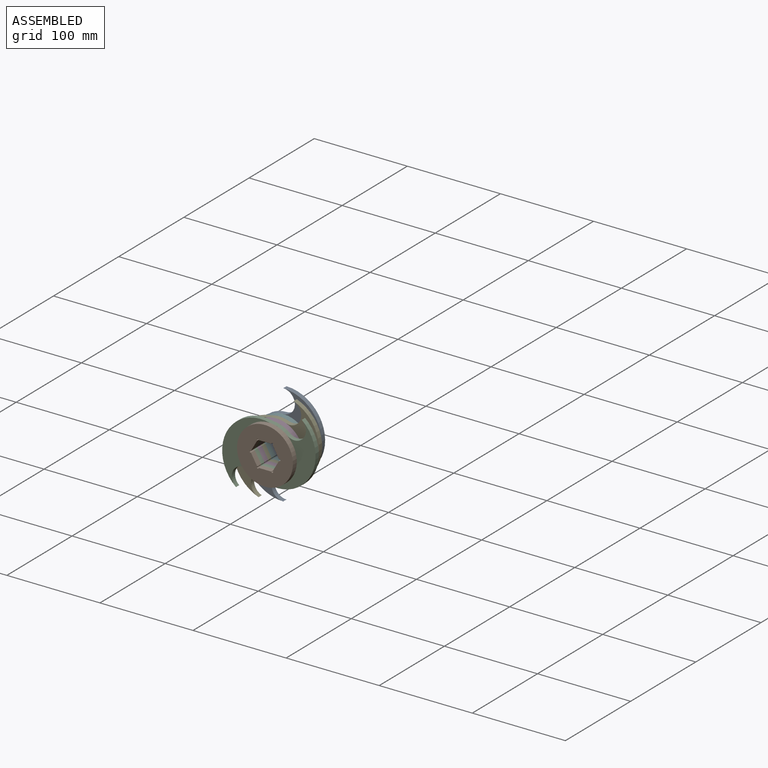
[diagram: assembled view]
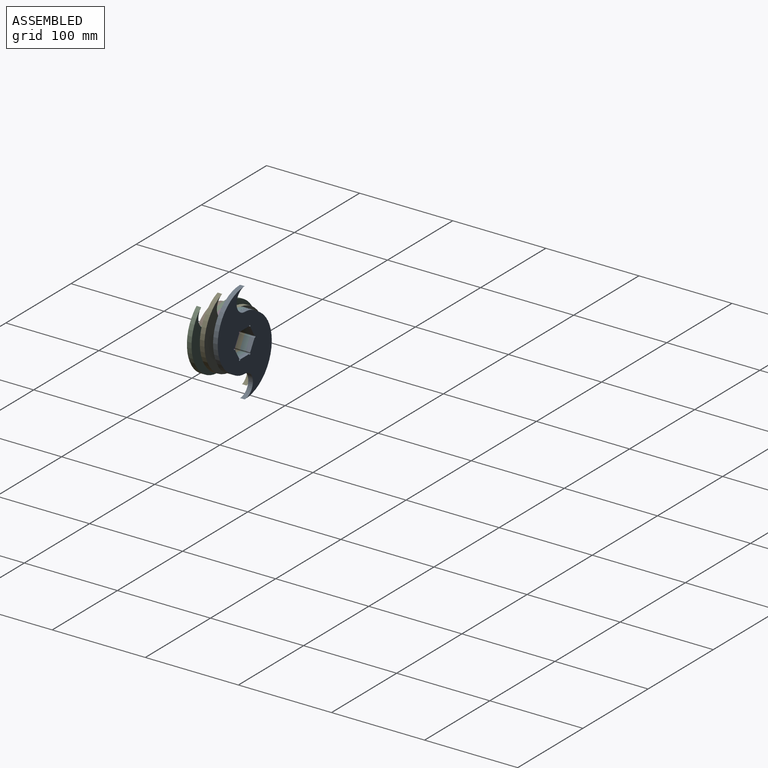
[diagram: assembled view, second angle]
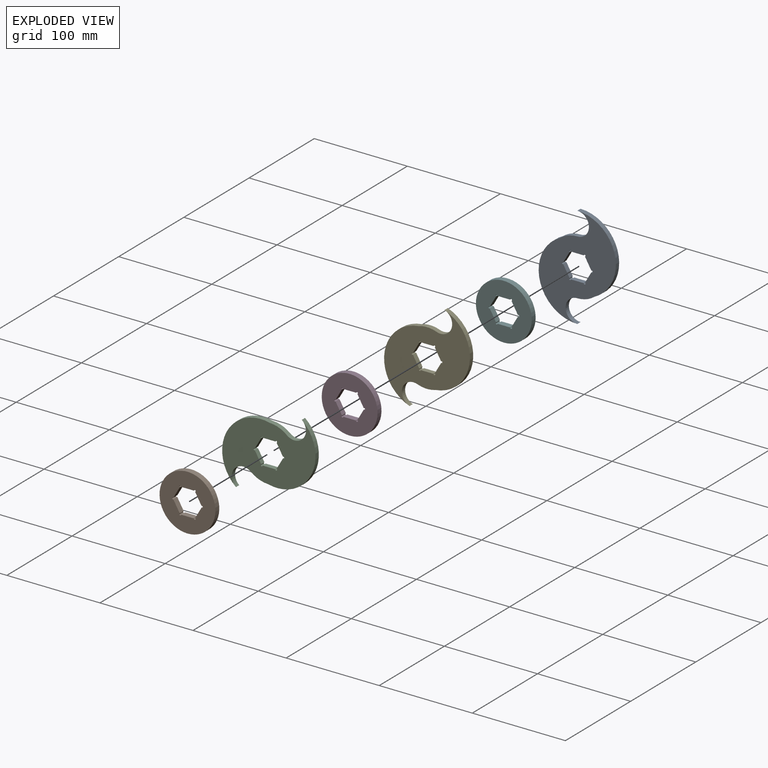
[diagram: exploded view]
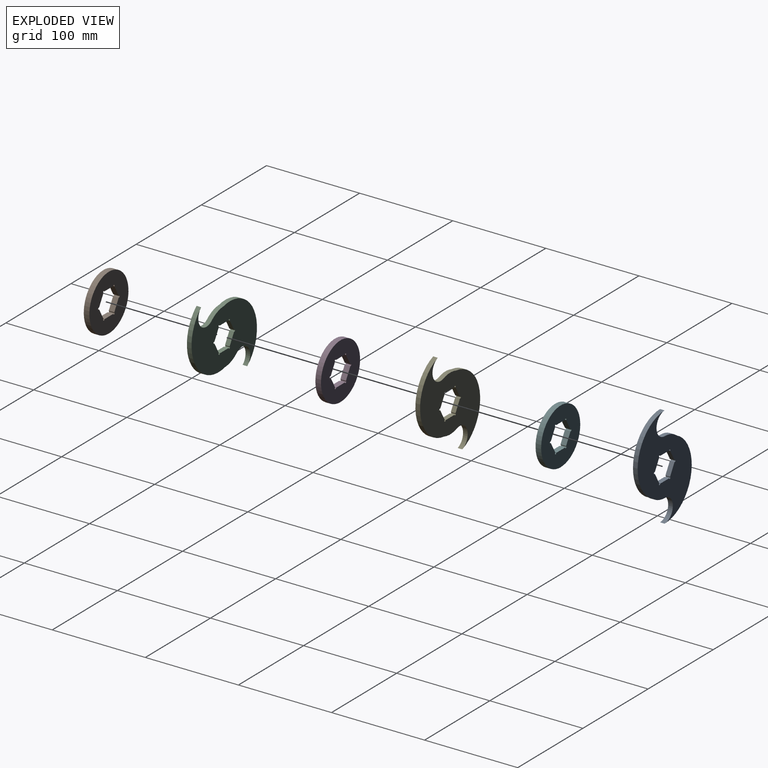
[diagram: exploded view, second angle]
ASSEMBLY  parts=6 mates=5
PART A: 20 faces, bbox 83x5x110 mm
  f0: cylinder r=12.5mm len=25mm, axis (0,1,0), area 196.3mm2, adj f1,f17,f18,f19
  f1: cylinder r=30mm len=18.39mm, axis (0,1,0), area 99mm2, adj f0,f2,f18,f19
  f2: cylinder r=41.5mm len=78.7mm, axis (0,1,0), area 556.6mm2, adj f1,f3,f18,f19
  f3: cylinder r=12.5mm len=25mm, axis (0,1,0), area 196.3mm2, adj f2,f4,f18,f19
  f4: cylinder r=30mm len=18.39mm, axis (0,1,0), area 99mm2, adj f3,f17,f18,f19
  f5: cylinder r=1mm len=5mm, axis (0,1,0), area 20.9mm2, adj f6,f16,f18,f19
  f6: plane 11.77x6.79mm, normal (0.87,0,-0.5), area 67.9mm2, adj f5,f7,f18,f19
  f7: cylinder r=1mm len=5mm, axis (0,1,0), area 20.9mm2, adj f6,f8,f18,f19
  f8: plane 13.59x5mm, normal (0,0,-1), area 67.9mm2, adj f7,f9,f18,f19
  f9: cylinder r=1mm len=5mm, axis (0,1,0), area 20.9mm2, adj f8,f10,f18,f19
  f10: plane 11.77x6.79mm, normal (-0.87,0,-0.5), area 67.9mm2, adj f9,f11,f18,f19
  f11: cylinder r=1mm len=5mm, axis (0,1,0), area 20.9mm2, adj f10,f12,f18,f19
  f12: plane 11.77x6.79mm, normal (-0.87,0,0.5), area 67.9mm2, adj f11,f13,f18,f19
  f13: cylinder r=1mm len=5mm, axis (0,1,0), area 20.9mm2, adj f12,f14,f18,f19
  f14: plane 13.59x5mm, normal (0,0,1), area 67.9mm2, adj f13,f15,f18,f19
  f15: cylinder r=1mm len=5mm, axis (0,1,0), area 20.9mm2, adj f14,f16,f18,f19
  f16: plane 11.77x6.79mm, normal (0.87,0,0.5), area 67.9mm2, adj f5,f15,f18,f19
  f17: cylinder r=41.5mm len=78.7mm, axis (0,1,0), area 556.6mm2, adj f0,f4,f18,f19
  f18: plane 110x83mm, normal (0,-1,0), area 4327.3mm2, adj f0,f1,f2,f3,f4,f5,f6,f7
  f19: plane 110x83mm, normal (0,1,0), area 4327.3mm2, adj f0,f1,f2,f3,f4,f5,f6,f7
PART B: 15 faces, bbox 60x6x60 mm
  f0: cylinder r=1mm len=6mm, axis (0,1,0), area 25.1mm2, adj f1,f11,f13,f14
  f1: plane 11.77x6.79mm, normal (0.87,0,-0.5), area 81.5mm2, adj f0,f2,f13,f14
  f2: cylinder r=1mm len=6mm, axis (0,1,0), area 25.1mm2, adj f1,f3,f13,f14
  f3: plane 13.59x6mm, normal (0,0,-1), area 81.5mm2, adj f2,f4,f13,f14
  f4: cylinder r=1mm len=6mm, axis (0,1,0), area 25.1mm2, adj f3,f5,f13,f14
  f5: plane 11.77x6.79mm, normal (-0.87,0,-0.5), area 81.5mm2, adj f4,f6,f13,f14
  f6: cylinder r=1mm len=6mm, axis (0,1,0), area 25.1mm2, adj f5,f7,f13,f14
  f7: plane 11.77x6.79mm, normal (-0.87,0,0.5), area 81.5mm2, adj f6,f8,f13,f14
  f8: cylinder r=1mm len=6mm, axis (0,1,0), area 25.1mm2, adj f7,f9,f13,f14
  f9: plane 13.59x6mm, normal (0,0,1), area 81.5mm2, adj f8,f10,f13,f14
  f10: cylinder r=1mm len=6mm, axis (0,1,0), area 25.1mm2, adj f9,f11,f13,f14
  f11: plane 11.77x6.79mm, normal (0.87,0,0.5), area 81.5mm2, adj f0,f10,f13,f14
  f12: cylinder r=30mm len=60mm, axis (0,1,0), area 1131mm2, adj f13,f14
  f13: plane 60x60mm, normal (0,-1,0), area 2183.5mm2, adj f0,f1,f2,f3,f4,f5,f6,f7
  f14: plane 60x60mm, normal (0,1,0), area 2183.5mm2, adj f0,f1,f2,f3,f4,f5,f6,f7
PART C: 20 faces, bbox 100.4x5x84.3 mm
  f0: cylinder r=12.5mm len=22.08mm, axis (0,1,0), area 196.3mm2, adj f1,f17,f18,f19
  f1: cylinder r=30mm len=18.13mm, axis (0,1,0), area 99mm2, adj f0,f2,f18,f19
  f2: cylinder r=41.5mm len=73.29mm, axis (0,1,0), area 556.6mm2, adj f1,f3,f18,f19
  f3: cylinder r=12.5mm len=22.08mm, axis (0,1,0), area 196.3mm2, adj f2,f4,f18,f19
  f4: cylinder r=30mm len=18.13mm, axis (0,1,0), area 99mm2, adj f3,f17,f18,f19
  f5: cylinder r=1mm len=5mm, axis (0,1,0), area 20.9mm2, adj f6,f16,f18,f19
  f6: plane 11.77x6.79mm, normal (0.87,0,-0.5), area 67.9mm2, adj f5,f7,f18,f19
  f7: cylinder r=1mm len=5mm, axis (0,1,0), area 20.9mm2, adj f6,f8,f18,f19
  f8: plane 13.59x5mm, normal (0,0,-1), area 67.9mm2, adj f7,f9,f18,f19
  f9: cylinder r=1mm len=5mm, axis (0,1,0), area 20.9mm2, adj f8,f10,f18,f19
  f10: plane 11.77x6.79mm, normal (-0.87,0,-0.5), area 67.9mm2, adj f9,f11,f18,f19
  f11: cylinder r=1mm len=5mm, axis (0,1,0), area 20.9mm2, adj f10,f12,f18,f19
  f12: plane 11.77x6.79mm, normal (-0.87,0,0.5), area 67.9mm2, adj f11,f13,f18,f19
  f13: cylinder r=1mm len=5mm, axis (0,1,0), area 20.9mm2, adj f12,f14,f18,f19
  f14: plane 13.59x5mm, normal (0,0,1), area 67.9mm2, adj f13,f15,f18,f19
  f15: cylinder r=1mm len=5mm, axis (0,1,0), area 20.9mm2, adj f14,f16,f18,f19
  f16: plane 11.77x6.79mm, normal (0.87,0,0.5), area 67.9mm2, adj f5,f15,f18,f19
  f17: cylinder r=41.5mm len=73.29mm, axis (0,1,0), area 556.6mm2, adj f0,f4,f18,f19
  f18: plane 100.36x84.27mm, normal (0,-1,0), area 4327.3mm2, adj f0,f1,f2,f3,f4,f5,f6,f7
  f19: plane 100.36x84.27mm, normal (0,1,0), area 4327.3mm2, adj f0,f1,f2,f3,f4,f5,f6,f7
PART D: same geometry as B
PART E: 20 faces, bbox 92.2x5x103.4 mm
  f0: cylinder r=41.5mm len=80.25mm, axis (0,1,0), area 556.6mm2, adj f1,f17,f18,f19
  f1: cylinder r=12.5mm len=24.25mm, axis (0,1,0), area 196.3mm2, adj f0,f2,f18,f19
  f2: cylinder r=30mm len=19.43mm, axis (0,1,0), area 99mm2, adj f1,f3,f18,f19
  f3: cylinder r=41.5mm len=80.25mm, axis (0,1,0), area 556.6mm2, adj f2,f4,f18,f19
  f4: cylinder r=12.5mm len=24.25mm, axis (0,1,0), area 196.3mm2, adj f3,f17,f18,f19
  f5: cylinder r=1mm len=5mm, axis (0,1,0), area 20.9mm2, adj f6,f16,f18,f19
  f6: plane 11.77x6.79mm, normal (0.87,0,-0.5), area 67.9mm2, adj f5,f7,f18,f19
  f7: cylinder r=1mm len=5mm, axis (0,1,0), area 20.9mm2, adj f6,f8,f18,f19
  f8: plane 13.59x5mm, normal (0,0,-1), area 67.9mm2, adj f7,f9,f18,f19
  f9: cylinder r=1mm len=5mm, axis (0,1,0), area 20.9mm2, adj f8,f10,f18,f19
  f10: plane 11.77x6.79mm, normal (-0.87,0,-0.5), area 67.9mm2, adj f9,f11,f18,f19
  f11: cylinder r=1mm len=5mm, axis (0,1,0), area 20.9mm2, adj f10,f12,f18,f19
  f12: plane 11.77x6.79mm, normal (-0.87,0,0.5), area 67.9mm2, adj f11,f13,f18,f19
  f13: cylinder r=1mm len=5mm, axis (0,1,0), area 20.9mm2, adj f12,f14,f18,f19
  f14: plane 13.59x5mm, normal (0,0,1), area 67.9mm2, adj f13,f15,f18,f19
  f15: cylinder r=1mm len=5mm, axis (0,1,0), area 20.9mm2, adj f14,f16,f18,f19
  f16: plane 11.77x6.79mm, normal (0.87,0,0.5), area 67.9mm2, adj f5,f15,f18,f19
  f17: cylinder r=30mm len=19.43mm, axis (0,1,0), area 99mm2, adj f0,f4,f18,f19
  f18: plane 103.37x92.23mm, normal (0,-1,0), area 4327.3mm2, adj f0,f1,f2,f3,f4,f5,f6,f7
  f19: plane 103.37x92.23mm, normal (0,1,0), area 4327.3mm2, adj f0,f1,f2,f3,f4,f5,f6,f7
PART F: same geometry as B
PLACE A t=(-86.15,-33.58,3.99)mm
PLACE B t=(-86.15,-60.58,3.99)mm
PLACE C t=(-86.15,-55.58,3.99)mm
PLACE D t=(-86.15,-49.58,3.99)mm
PLACE E t=(-86.15,-44.58,3.99)mm
PLACE F t=(-86.15,-38.58,3.99)mm
MATE fastened D.f12 <-> E.f17  axis (0,1,0) through (-86.15,-49.58,3.99)mm
MATE fastened C.f1 <-> D.f12  axis (0,1,0) through (-86.15,-55.58,3.99)mm
MATE fastened B.f12 <-> C.f4  axis (0,1,0) through (-86.15,-60.58,3.99)mm
MATE fastened F.f12 <-> E.f2  axis (0,-1,0) through (-86.15,-44.58,3.99)mm
MATE fastened A.f4 <-> F.f12  axis (0,-1,0) through (-86.15,-38.58,3.99)mm
